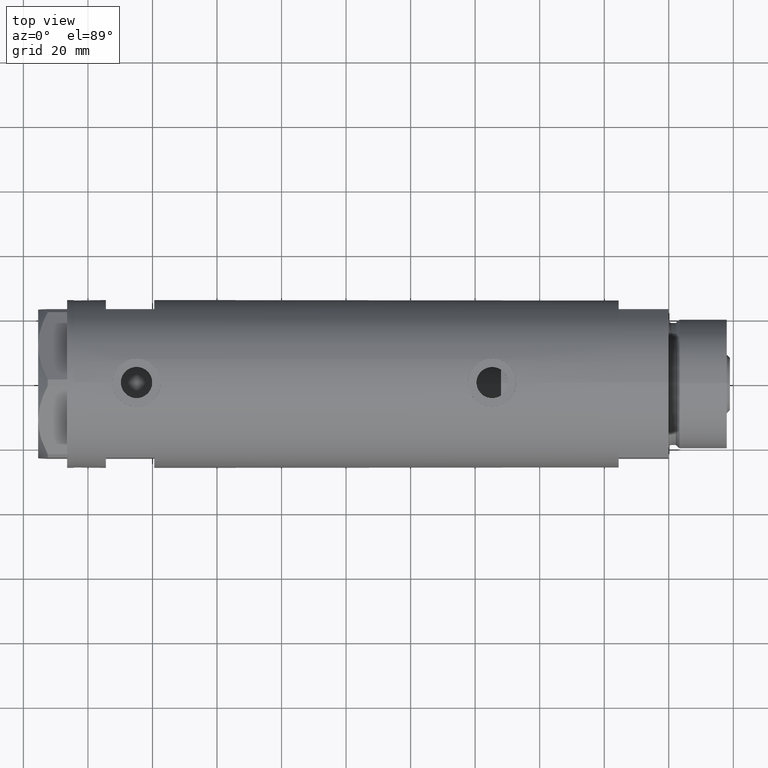
[diagram: clean part render]
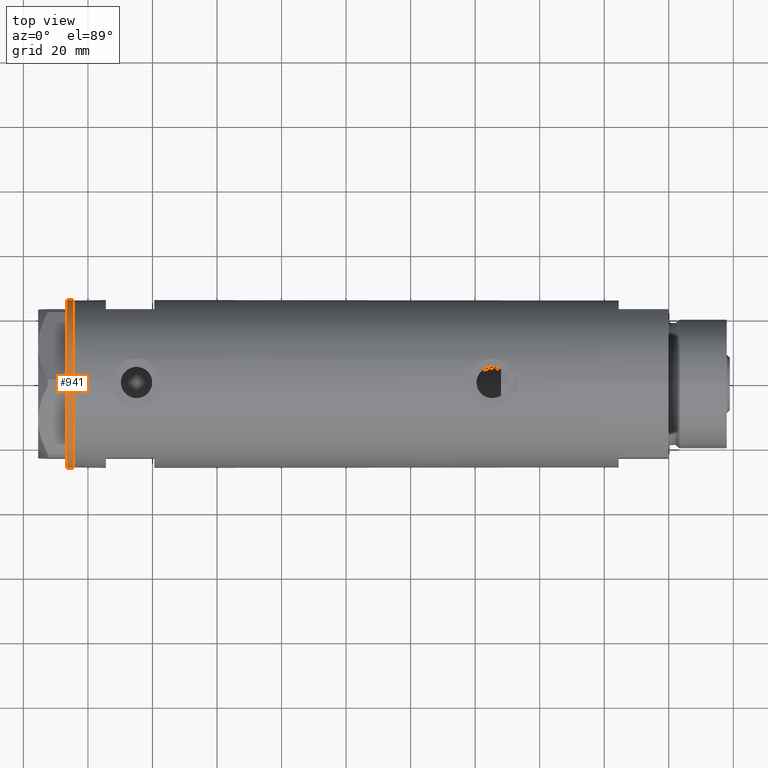
[diagram: same view with one face highlighted and labeled with its STEP entity id]
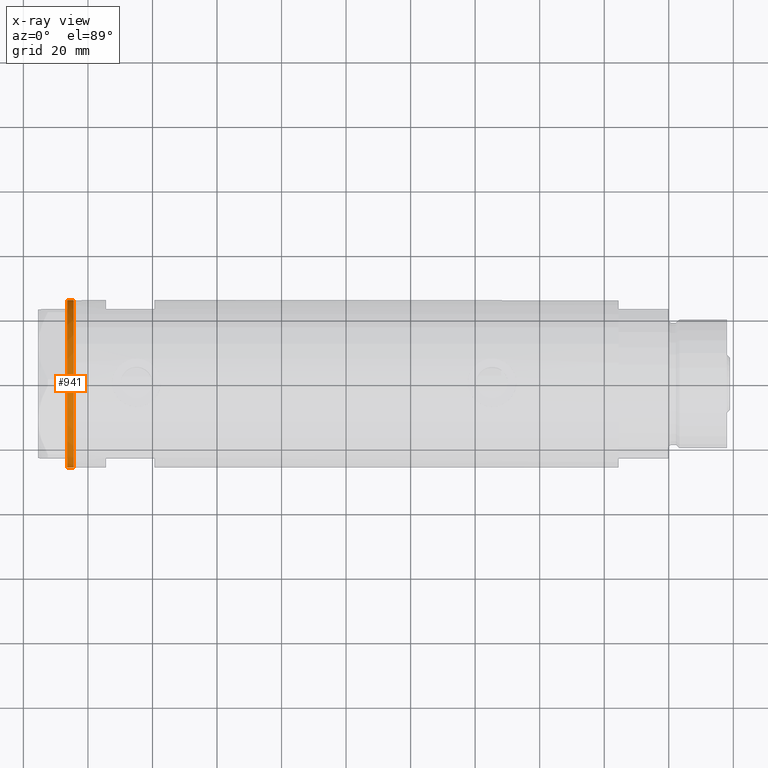
[diagram: x-ray of the same camera — body ghosted, the highlighted face saturated]
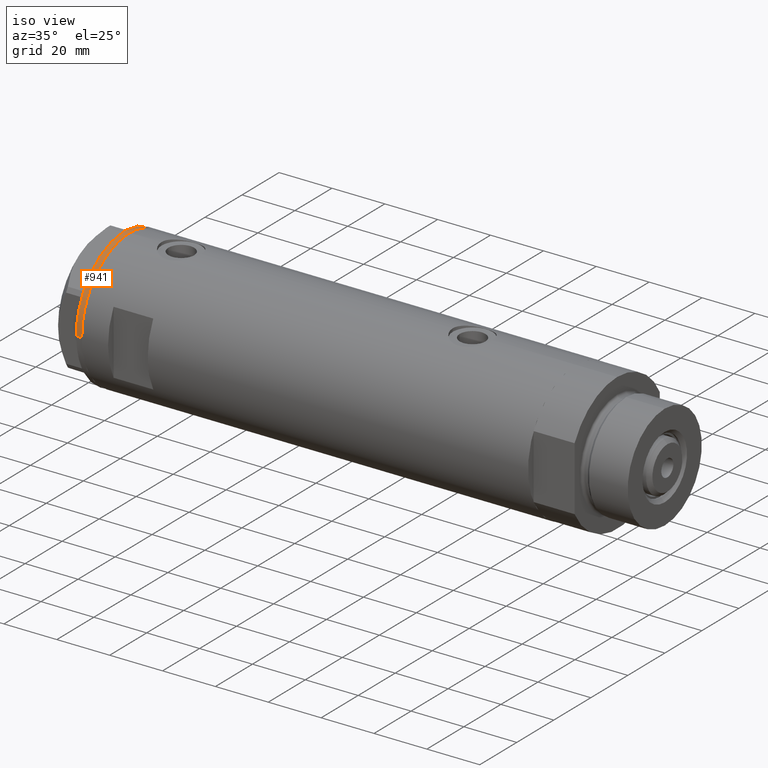
[diagram: same view with one face highlighted and labeled with its STEP entity id]
A machine part, top view. The second image highlights one B-rep face of the part: STEP entity #941.
The next image is the same camera in x-ray: the body ghosted, the highlighted face saturated — about 0% of this face is hidden behind the body in this view.
A second angle (iso view) of the same face is appended — the face is thin or edge-on in the first view.
In plain terms, the highlighted cylindrical surface (partial cylindrical patch) has radius 26 mm, axis along (-1, -0, 0).
Its self-contained STEP definition (entity closure, byte-faithful):
#16 = ORIENTED_EDGE ( 'NONE', *, *, #4833, .T. ) ;
#25 = EDGE_CURVE ( 'NONE', #3336, #1831, #4720, .T. ) ;
#38 = CARTESIAN_POINT ( 'NONE',  ( 22.00000000000017053, -13.85640646055075464, 0.000000000000000000 ) ) ;
#42 = CARTESIAN_POINT ( 'NONE',  ( 22.67167229899274616, -12.72773645103814211, 0.000000000000000000 ) ) ;
#168 = CARTESIAN_POINT ( 'NONE',  ( 26.00000000000000355, 0.000000000000000000, 0.000000000000000000 ) ) ;
#202 = CARTESIAN_POINT ( 'NONE',  ( 0.000000000000000000, 0.000000000000000000, 0.000000000000000000 ) ) ;
#234 = CARTESIAN_POINT ( 'NONE',  ( 22.35837924876884131, -13.27037593168418717, 0.000000000000000000 ) ) ;
#243 = VERTEX_POINT ( 'NONE', #38 ) ;
#277 = AXIS2_PLACEMENT_3D ( 'NONE', #4106, #2155, #4521 ) ;
#321 = CARTESIAN_POINT ( 'NONE',  ( 0.000000000000000000, 0.000000000000000000, 0.000000000000000000 ) ) ;
#342 = DIRECTION ( 'NONE',  ( -1.000000000000000000, 0.000000000000000000, 0.000000000000000000 ) ) ;
#375 = EDGE_LOOP ( 'NONE', ( #4652, #3605, #599, #5130, #1145, #3258, #1658, #16, #1112, #2463, #2066, #5182, #1467, #521, #3722, #1109 ) ) ;
#387 = CARTESIAN_POINT ( 'NONE',  ( 23.00000000000007461, -12.12435565298200224, 0.000000000000000000 ) ) ;
#390 = VERTEX_POINT ( 'NONE', #3508 ) ;
#521 = ORIENTED_EDGE ( 'NONE', *, *, #2662, .T. ) ;
#522 = CIRCLE ( 'NONE', #4132, 26.00000000000000355 ) ;
#525 = VECTOR ( 'NONE', #3401, 1000.000000000000000 ) ;
#529 = AXIS2_PLACEMENT_3D ( 'NONE', #4179, #597, #3897 ) ;
#554 = EDGE_CURVE ( 'NONE', #3758, #3336, #695, .T. ) ;
#597 = DIRECTION ( 'NONE',  ( 0.000000000000000000, 0.000000000000000000, -1.000000000000000000 ) ) ;
#599 = ORIENTED_EDGE ( 'NONE', *, *, #3591, .T. ) ;
#654 = VERTEX_POINT ( 'NONE', #1163 ) ;
#695 = CIRCLE ( 'NONE', #4966, 26.00000000000000355 ) ;
#707 = CARTESIAN_POINT ( 'NONE',  ( -22.67167229899264669, -12.72773645103832507, 0.000000000000000000 ) ) ;
#805 = VERTEX_POINT ( 'NONE', #1726 ) ;
#809 = CARTESIAN_POINT ( 'NONE',  ( 0.000000000000000000, 0.000000000000000000, 0.000000000000000000 ) ) ;
#811 = DIRECTION ( 'NONE',  ( -1.000000000000000000, 0.000000000000000000, 0.000000000000000000 ) ) ;
#816 = CARTESIAN_POINT ( 'NONE',  ( 0.3132930502243174709, -25.99811238272273428, 0.000000000000000000 ) ) ;
#859 = DIRECTION ( 'NONE',  ( 0.000000000000000000, 0.000000000000000000, -1.000000000000000000 ) ) ;
#941 = ADVANCED_FACE ( 'NONE', ( #2340 ), #3465, .T. ) ;
#955 = CARTESIAN_POINT ( 'NONE',  ( 22.35837924876884131, -13.27037593168418717, 0.000000000000000000 ) ) ;
#975 = EDGE_CURVE ( 'NONE', #2443, #243, #3708, .T. ) ;
#978 = CARTESIAN_POINT ( 'NONE',  ( -21.99999999999998224, -13.85640646055105485, 0.000000000000000000 ) ) ;
#1029 = VERTEX_POINT ( 'NONE', #3894 ) ;
#1041 = LINE ( 'NONE', #2677, #3825 ) ;
#1071 = DIRECTION ( 'NONE',  ( -1.000000000000000000, 0.000000000000000000, 0.000000000000000000 ) ) ;
#1086 = EDGE_CURVE ( 'NONE', #1670, #1408, #522, .T. ) ;
#1098 = B_SPLINE_CURVE_WITH_KNOTS ( 'NONE', 3,
 ( #3919, #5196, #1587, #707 ),
 .UNSPECIFIED., .F., .F.,
 ( 4, 4 ),
 ( 0.000000000000000000, 1.000000000000000000 ),
 .UNSPECIFIED. ) ;
#1109 = ORIENTED_EDGE ( 'NONE', *, *, #4867, .T. ) ;
#1112 = ORIENTED_EDGE ( 'NONE', *, *, #2462, .T. ) ;
#1145 = ORIENTED_EDGE ( 'NONE', *, *, #2167, .T. ) ;
#1156 = EDGE_CURVE ( 'NONE', #654, #4075, #3003, .T. ) ;
#1163 = CARTESIAN_POINT ( 'NONE',  ( -26.00000000000000355, 3.184081677783118585E-15, -2.000000000000000000 ) ) ;
#1211 = VERTEX_POINT ( 'NONE', #168 ) ;
#1299 = DIRECTION ( 'NONE',  ( 0.000000000000000000, 0.000000000000000000, -1.000000000000000000 ) ) ;
#1408 = VERTEX_POINT ( 'NONE', #1852 ) ;
#1447 = AXIS2_PLACEMENT_3D ( 'NONE', #4260, #3866, #2316 ) ;
#1467 = ORIENTED_EDGE ( 'NONE', *, *, #4576, .T. ) ;
#1469 = AXIS2_PLACEMENT_3D ( 'NONE', #1942, #4706, #4732 ) ;
#1548 = CARTESIAN_POINT ( 'NONE',  ( 0.000000000000000000, 0.000000000000000000, 0.000000000000000000 ) ) ;
#1580 = VERTEX_POINT ( 'NONE', #42 ) ;
#1585 = CARTESIAN_POINT ( 'NONE',  ( -22.67167229899264669, -12.72773645103832507, 0.000000000000000000 ) ) ;
#1587 = CARTESIAN_POINT ( 'NONE',  ( -22.56942594318098116, -12.90986591935703665, 0.000000000000000000 ) ) ;
#1592 = CARTESIAN_POINT ( 'NONE',  ( -0.9999999999997406519, -25.98076211353317433, 0.000000000000000000 ) ) ;
#1658 = ORIENTED_EDGE ( 'NONE', *, *, #975, .T. ) ;
#1670 = VERTEX_POINT ( 'NONE', #1585 ) ;
#1718 = DIRECTION ( 'NONE',  ( 0.000000000000000000, 0.000000000000000000, -1.000000000000000000 ) ) ;
#1726 = CARTESIAN_POINT ( 'NONE',  ( -22.35837924876856064, -13.27037593168466501, 0.000000000000000000 ) ) ;
#1831 = VERTEX_POINT ( 'NONE', #978 ) ;
#1852 = CARTESIAN_POINT ( 'NONE',  ( -22.99999999999990763, -12.12435565298232021, 0.000000000000000000 ) ) ;
#1932 = CARTESIAN_POINT ( 'NONE',  ( 26.00000000000000355, 0.000000000000000000, -2.000000000000000000 ) ) ;
#1942 = CARTESIAN_POINT ( 'NONE',  ( 0.000000000000000000, 0.000000000000000000, 0.000000000000000000 ) ) ;
#1943 = VERTEX_POINT ( 'NONE', #1932 ) ;
#2023 = CARTESIAN_POINT ( 'NONE',  ( -0.3132930502238524539, -25.99811238272274139, 0.000000000000000000 ) ) ;
#2066 = ORIENTED_EDGE ( 'NONE', *, *, #554, .T. ) ;
#2155 = DIRECTION ( 'NONE',  ( 0.000000000000000000, 0.000000000000000000, -1.000000000000000000 ) ) ;
#2167 = EDGE_CURVE ( 'NONE', #3630, #1580, #5073, .T. ) ;
#2310 = AXIS2_PLACEMENT_3D ( 'NONE', #4114, #1718, #811 ) ;
#2316 = DIRECTION ( 'NONE',  ( 1.000000000000000000, 0.000000000000000000, 0.000000000000000000 ) ) ;
#2340 = FACE_OUTER_BOUND ( 'NONE', #375, .T. ) ;
#2414 = DIRECTION ( 'NONE',  ( 0.000000000000000000, 0.000000000000000000, -1.000000000000000000 ) ) ;
#2420 = CARTESIAN_POINT ( 'NONE',  ( -0.1044411259762646482, -26.00062917530481243, 0.000000000000000000 ) ) ;
#2443 = VERTEX_POINT ( 'NONE', #234 ) ;
#2462 = EDGE_CURVE ( 'NONE', #390, #1029, #4066, .T. ) ;
#2463 = ORIENTED_EDGE ( 'NONE', *, *, #4130, .T. ) ;
#2505 = CARTESIAN_POINT ( 'NONE',  ( 22.56942594318113748, -12.90986591935675065, 0.000000000000000000 ) ) ;
#2547 = AXIS2_PLACEMENT_3D ( 'NONE', #202, #5035, #1071 ) ;
#2557 = CARTESIAN_POINT ( 'NONE',  ( 0.000000000000000000, 0.000000000000000000, 0.000000000000000000 ) ) ;
#2656 = DIRECTION ( 'NONE',  ( -1.000000000000000000, 0.000000000000000000, 0.000000000000000000 ) ) ;
#2662 = EDGE_CURVE ( 'NONE', #805, #1670, #1098, .T. ) ;
#2677 = CARTESIAN_POINT ( 'NONE',  ( 26.00000000000000355, 0.000000000000000000, -2.000000000000000000 ) ) ;
#2702 = DIRECTION ( 'NONE',  ( -0.000000000000000000, -0.000000000000000000, 1.000000000000000000 ) ) ;
#2832 = CARTESIAN_POINT ( 'NONE',  ( 0.000000000000000000, 0.000000000000000000, 0.000000000000000000 ) ) ;
#3003 = LINE ( 'NONE', #3766, #525 ) ;
#3035 = DIRECTION ( 'NONE',  ( -1.000000000000000000, 0.000000000000000000, 0.000000000000000000 ) ) ;
#3153 = CIRCLE ( 'NONE', #3489, 26.00000000000000355 ) ;
#3181 = DIRECTION ( 'NONE',  ( -1.000000000000000000, 0.000000000000000000, 0.000000000000000000 ) ) ;
#3220 = CIRCLE ( 'NONE', #3569, 26.00000000000000355 ) ;
#3228 = CIRCLE ( 'NONE', #1469, 26.00000000000000355 ) ;
#3235 = CARTESIAN_POINT ( 'NONE',  ( 0.1044411259767168837, -26.00062917530480888, 0.000000000000000000 ) ) ;
#3258 = ORIENTED_EDGE ( 'NONE', *, *, #3501, .T. ) ;
#3310 = CIRCLE ( 'NONE', #2310, 26.00000000000000355 ) ;
#3336 = VERTEX_POINT ( 'NONE', #1592 ) ;
#3401 = DIRECTION ( 'NONE',  ( -0.000000000000000000, -0.000000000000000000, 1.000000000000000000 ) ) ;
#3435 = CARTESIAN_POINT ( 'NONE',  ( 0.000000000000000000, 0.000000000000000000, -2.000000000000000000 ) ) ;
#3465 = CYLINDRICAL_SURFACE ( 'NONE', #1447, 26.00000000000000355 ) ;
#3489 = AXIS2_PLACEMENT_3D ( 'NONE', #2557, #1299, #3181 ) ;
#3501 = EDGE_CURVE ( 'NONE', #1580, #2443, #4100, .T. ) ;
#3508 = CARTESIAN_POINT ( 'NONE',  ( 1.000000000000106803, -25.98076211353316367, 0.000000000000000000 ) ) ;
#3569 = AXIS2_PLACEMENT_3D ( 'NONE', #3435, #5036, #3035 ) ;
#3591 = EDGE_CURVE ( 'NONE', #1943, #1211, #1041, .T. ) ;
#3605 = ORIENTED_EDGE ( 'NONE', *, *, #4753, .F. ) ;
#3630 = VERTEX_POINT ( 'NONE', #387 ) ;
#3705 = B_SPLINE_CURVE_WITH_KNOTS ( 'NONE', 3,
 ( #816, #3235, #2420, #2023 ),
 .UNSPECIFIED., .F., .F.,
 ( 4, 4 ),
 ( 0.000000000000000000, 1.000000000000000000 ),
 .UNSPECIFIED. ) ;
#3708 = CIRCLE ( 'NONE', #3899, 26.00000000000000355 ) ;
#3722 = ORIENTED_EDGE ( 'NONE', *, *, #1086, .T. ) ;
#3758 = VERTEX_POINT ( 'NONE', #4167 ) ;
#3766 = CARTESIAN_POINT ( 'NONE',  ( -26.00000000000000355, 3.184081677783118585E-15, -2.000000000000000000 ) ) ;
#3820 = AXIS2_PLACEMENT_3D ( 'NONE', #809, #2414, #4457 ) ;
#3825 = VECTOR ( 'NONE', #2702, 1000.000000000000000 ) ;
#3839 = DIRECTION ( 'NONE',  ( 0.000000000000000000, 0.000000000000000000, -1.000000000000000000 ) ) ;
#3866 = DIRECTION ( 'NONE',  ( -0.000000000000000000, -0.000000000000000000, 1.000000000000000000 ) ) ;
#3894 = CARTESIAN_POINT ( 'NONE',  ( 0.3132930502243174709, -25.99811238272273428, 0.000000000000000000 ) ) ;
#3897 = DIRECTION ( 'NONE',  ( -1.000000000000000000, 0.000000000000000000, 0.000000000000000000 ) ) ;
#3899 = AXIS2_PLACEMENT_3D ( 'NONE', #321, #3839, #2656 ) ;
#3919 = CARTESIAN_POINT ( 'NONE',  ( -22.35837924876856064, -13.27037593168466501, 0.000000000000000000 ) ) ;
#3947 = DIRECTION ( 'NONE',  ( 0.000000000000000000, 0.000000000000000000, -1.000000000000000000 ) ) ;
#4066 = CIRCLE ( 'NONE', #2547, 26.00000000000000355 ) ;
#4075 = VERTEX_POINT ( 'NONE', #4880 ) ;
#4100 = B_SPLINE_CURVE_WITH_KNOTS ( 'NONE', 3,
 ( #4585, #2505, #4117, #955 ),
 .UNSPECIFIED., .F., .F.,
 ( 4, 4 ),
 ( 0.000000000000000000, 1.000000000000000000 ),
 .UNSPECIFIED. ) ;
#4106 = CARTESIAN_POINT ( 'NONE',  ( 0.000000000000000000, 0.000000000000000000, 0.000000000000000000 ) ) ;
#4114 = CARTESIAN_POINT ( 'NONE',  ( 0.000000000000000000, 0.000000000000000000, 0.000000000000000000 ) ) ;
#4117 = CARTESIAN_POINT ( 'NONE',  ( 22.46498481720470863, -13.09076325594764079, 0.000000000000000000 ) ) ;
#4130 = EDGE_CURVE ( 'NONE', #1029, #3758, #3705, .T. ) ;
#4132 = AXIS2_PLACEMENT_3D ( 'NONE', #1548, #3947, #342 ) ;
#4167 = CARTESIAN_POINT ( 'NONE',  ( -0.3132930502238524539, -25.99811238272274139, 0.000000000000000000 ) ) ;
#4179 = CARTESIAN_POINT ( 'NONE',  ( 0.000000000000000000, 0.000000000000000000, 0.000000000000000000 ) ) ;
#4260 = CARTESIAN_POINT ( 'NONE',  ( 0.000000000000000000, 0.000000000000000000, -2.000000000000000000 ) ) ;
#4379 = EDGE_CURVE ( 'NONE', #1211, #3630, #3228, .T. ) ;
#4457 = DIRECTION ( 'NONE',  ( -1.000000000000000000, 0.000000000000000000, 0.000000000000000000 ) ) ;
#4482 = CIRCLE ( 'NONE', #3820, 26.00000000000000355 ) ;
#4521 = DIRECTION ( 'NONE',  ( -1.000000000000000000, 0.000000000000000000, 0.000000000000000000 ) ) ;
#4576 = EDGE_CURVE ( 'NONE', #1831, #805, #4482, .T. ) ;
#4585 = CARTESIAN_POINT ( 'NONE',  ( 22.67167229899274616, -12.72773645103814211, 0.000000000000000000 ) ) ;
#4652 = ORIENTED_EDGE ( 'NONE', *, *, #1156, .F. ) ;
#4706 = DIRECTION ( 'NONE',  ( 0.000000000000000000, 0.000000000000000000, -1.000000000000000000 ) ) ;
#4720 = CIRCLE ( 'NONE', #277, 26.00000000000000355 ) ;
#4732 = DIRECTION ( 'NONE',  ( -1.000000000000000000, 0.000000000000000000, 0.000000000000000000 ) ) ;
#4753 = EDGE_CURVE ( 'NONE', #1943, #654, #3220, .T. ) ;
#4785 = DIRECTION ( 'NONE',  ( -1.000000000000000000, 0.000000000000000000, 0.000000000000000000 ) ) ;
#4833 = EDGE_CURVE ( 'NONE', #243, #390, #3310, .T. ) ;
#4867 = EDGE_CURVE ( 'NONE', #1408, #4075, #3153, .T. ) ;
#4880 = CARTESIAN_POINT ( 'NONE',  ( -26.00000000000000355, 3.184081677783118585E-15, 0.000000000000000000 ) ) ;
#4966 = AXIS2_PLACEMENT_3D ( 'NONE', #2832, #859, #4785 ) ;
#5035 = DIRECTION ( 'NONE',  ( 0.000000000000000000, 0.000000000000000000, -1.000000000000000000 ) ) ;
#5036 = DIRECTION ( 'NONE',  ( 0.000000000000000000, 0.000000000000000000, -1.000000000000000000 ) ) ;
#5073 = CIRCLE ( 'NONE', #529, 26.00000000000000355 ) ;
#5130 = ORIENTED_EDGE ( 'NONE', *, *, #4379, .T. ) ;
#5182 = ORIENTED_EDGE ( 'NONE', *, *, #25, .T. ) ;
#5196 = CARTESIAN_POINT ( 'NONE',  ( -22.46498481720448481, -13.09076325594801915, 0.000000000000000000 ) ) ;